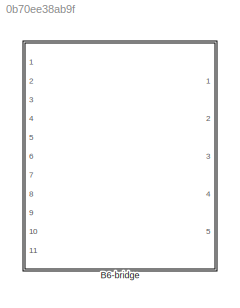
MODEL slx_0b70ee38ab9f
KIND library
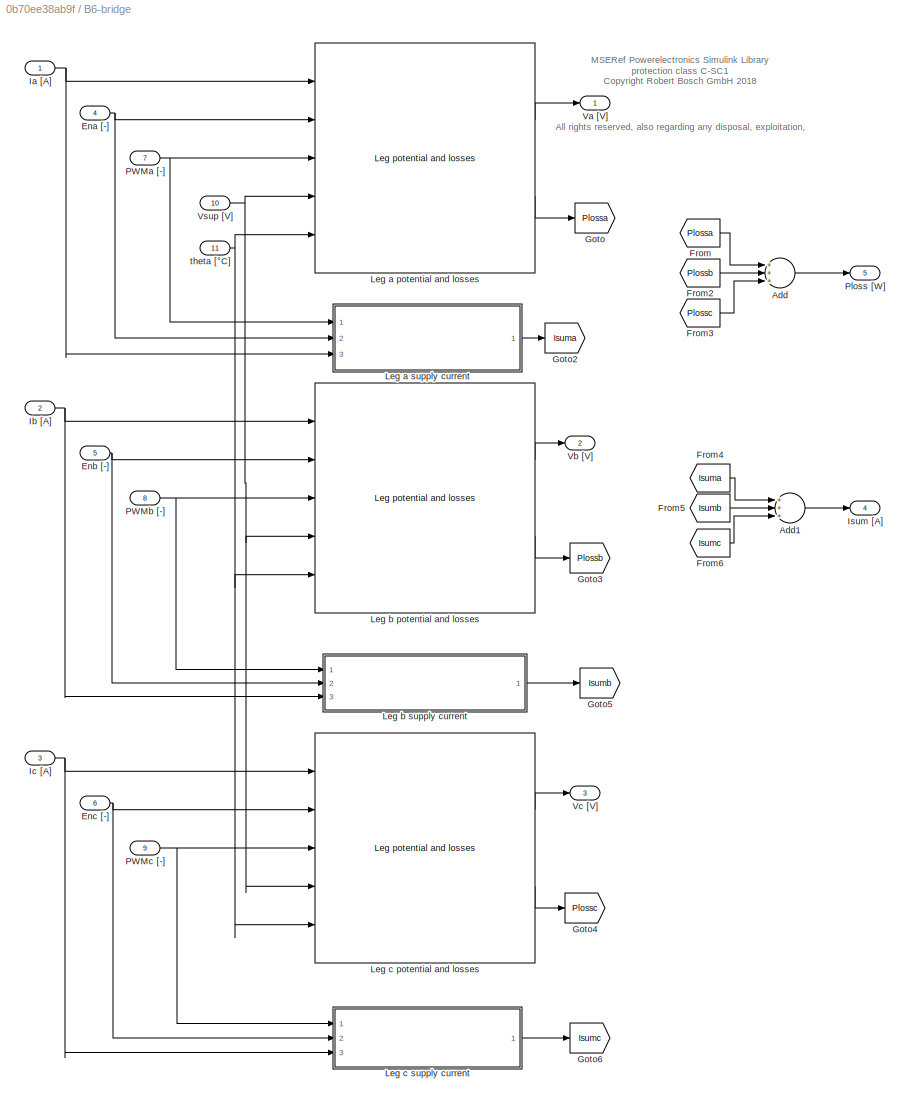
BLOCK [SubSystem] B6-bridge
  AttributesFormatString = <%<Tag>>
  Ports = [11, 5]
  RequestExecContextInheritance = off
  Tag = PEB601MSEREF
BLOCK [Sum] B6-bridge/Add
  InputSameDT = off
  Inputs = +++
  OutDataTypeStr = Inherit: Inherit via internal rule
  Ports = [3, 1]
  SaturateOnIntegerOverflow = off
BLOCK [Sum] B6-bridge/Add1
  InputSameDT = off
  Inputs = +++
  OutDataTypeStr = Inherit: Inherit via internal rule
  Ports = [3, 1]
  SaturateOnIntegerOverflow = off
BLOCK [Inport] B6-bridge/Ena [-]
  IconDisplay = Port number
  Port = 4
BLOCK [Inport] B6-bridge/Enb [-]
  IconDisplay = Port number
  Port = 5
BLOCK [Inport] B6-bridge/Enc [-]
  IconDisplay = Port number
  Port = 6
BLOCK [From] B6-bridge/From
  CloseFcn = tagdialog Close
  GotoTag = Plossa
BLOCK [From] B6-bridge/From2
  CloseFcn = tagdialog Close
  GotoTag = Plossb
BLOCK [From] B6-bridge/From3
  CloseFcn = tagdialog Close
  GotoTag = Plossc
BLOCK [From] B6-bridge/From4
  CloseFcn = tagdialog Close
  GotoTag = Isuma
BLOCK [From] B6-bridge/From5
  CloseFcn = tagdialog Close
  GotoTag = Isumb
BLOCK [From] B6-bridge/From6
  CloseFcn = tagdialog Close
  GotoTag = Isumc
BLOCK [Goto] B6-bridge/Goto
  GotoTag = Plossa
BLOCK [Goto] B6-bridge/Goto2
  GotoTag = Isuma
BLOCK [Goto] B6-bridge/Goto3
  GotoTag = Plossb
BLOCK [Goto] B6-bridge/Goto4
  GotoTag = Plossc
BLOCK [Goto] B6-bridge/Goto5
  GotoTag = Isumb
BLOCK [Goto] B6-bridge/Goto6
  GotoTag = Isumc
BLOCK [Inport] B6-bridge/Ia [A]
  IconDisplay = Port number
BLOCK [Inport] B6-bridge/Ib [A]
  IconDisplay = Port number
  Port = 2
BLOCK [Inport] B6-bridge/Ic [A]
  IconDisplay = Port number
  Port = 3
BLOCK [Outport] B6-bridge/Isum [A]
  IconDisplay = Port number
  Port = 4
BLOCK [Reference] B6-bridge/Leg a potential and losses  REF=PEPS101MSEREF/Single power stage/Leg potential and losses
  IGBT = IGBT
  Ieps = Ieps
  Ports = [5, 2]
  RD20 = RD20
  RT20 = RT20
  SourceBlock = PEPS101MSEREF/Single power stage/Leg potential and losses
  SourceType = PEPS101MSEREF_potential
  VD20 = VD20
  VT20 = VT20
  alphaRD = alphaRD
  alphaRT = alphaRT
  alphaVD = alphaVD
  alphaVT = alphaVT
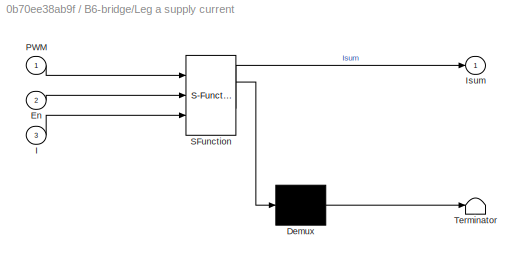
BLOCK [SubSystem] B6-bridge/Leg a supply current
  ErrorFcn = Stateflow.Translate.translate
  PermitHierarchicalResolution = ExplicitOnly
  Ports = [3, 1]
  RequestExecContextInheritance = off
  SFBlockType = MATLAB Function
  TreatAsAtomicUnit = on
BLOCK [Demux] B6-bridge/Leg a supply current/ Demux 
  Outputs = 1
  Ports = [1, 1]
BLOCK [S-Function] B6-bridge/Leg a supply current/ SFunction 
  EnableBusSupport = off
  FunctionName = sf_sfun
  PortCounts = [3 2]
  Ports = [3, 2]
  Tag = Stateflow S-Function PEB601MSEREF 1
BLOCK [Terminator] B6-bridge/Leg a supply current/ Terminator 
BLOCK [Inport] B6-bridge/Leg a supply current/En
  IconDisplay = Port number
  Port = 2
BLOCK [Inport] B6-bridge/Leg a supply current/I
  IconDisplay = Port number
  Port = 3
BLOCK [Outport] B6-bridge/Leg a supply current/Isum
  IconDisplay = Port number
BLOCK [Inport] B6-bridge/Leg a supply current/PWM
  IconDisplay = Port number
BLOCK [Reference] B6-bridge/Leg b potential and losses  REF=PEPS101MSEREF/Single power stage/Leg potential and losses
  IGBT = IGBT
  Ieps = Ieps
  Ports = [5, 2]
  RD20 = RD20
  RT20 = RT20
  SourceBlock = PEPS101MSEREF/Single power stage/Leg potential and losses
  SourceType = PEPS101MSEREF_potential
  VD20 = VD20
  VT20 = VT20
  alphaRD = alphaRD
  alphaRT = alphaRT
  alphaVD = alphaVD
  alphaVT = alphaVT
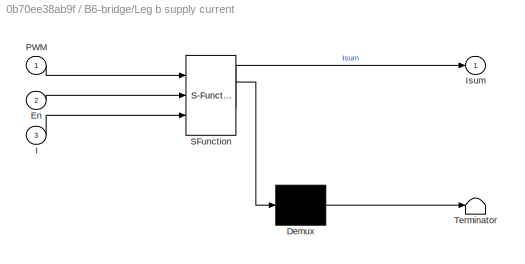
BLOCK [SubSystem] B6-bridge/Leg b supply current
  ErrorFcn = Stateflow.Translate.translate
  PermitHierarchicalResolution = ExplicitOnly
  Ports = [3, 1]
  RequestExecContextInheritance = off
  SFBlockType = MATLAB Function
  TreatAsAtomicUnit = on
BLOCK [Demux] B6-bridge/Leg b supply current/ Demux 
  Outputs = 1
  Ports = [1, 1]
BLOCK [S-Function] B6-bridge/Leg b supply current/ SFunction 
  EnableBusSupport = off
  FunctionName = sf_sfun
  PortCounts = [3 2]
  Ports = [3, 2]
  Tag = Stateflow S-Function PEB601MSEREF 3
BLOCK [Terminator] B6-bridge/Leg b supply current/ Terminator 
BLOCK [Inport] B6-bridge/Leg b supply current/En
  IconDisplay = Port number
  Port = 2
BLOCK [Inport] B6-bridge/Leg b supply current/I
  IconDisplay = Port number
  Port = 3
BLOCK [Outport] B6-bridge/Leg b supply current/Isum
  IconDisplay = Port number
BLOCK [Inport] B6-bridge/Leg b supply current/PWM
  IconDisplay = Port number
BLOCK [Reference] B6-bridge/Leg c potential and losses  REF=PEPS101MSEREF/Single power stage/Leg potential and losses
  IGBT = IGBT
  Ieps = Ieps
  Ports = [5, 2]
  RD20 = RD20
  RT20 = RT20
  SourceBlock = PEPS101MSEREF/Single power stage/Leg potential and losses
  SourceType = PEPS101MSEREF_potential
  VD20 = VD20
  VT20 = VT20
  alphaRD = alphaRD
  alphaRT = alphaRT
  alphaVD = alphaVD
  alphaVT = alphaVT
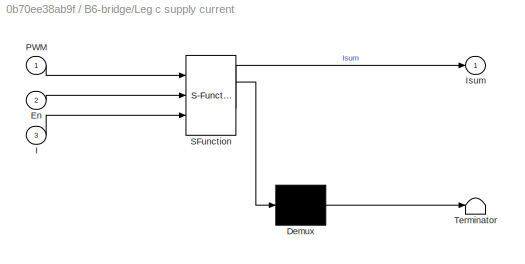
BLOCK [SubSystem] B6-bridge/Leg c supply current
  ErrorFcn = Stateflow.Translate.translate
  PermitHierarchicalResolution = ExplicitOnly
  Ports = [3, 1]
  RequestExecContextInheritance = off
  SFBlockType = MATLAB Function
  TreatAsAtomicUnit = on
BLOCK [Demux] B6-bridge/Leg c supply current/ Demux 
  Outputs = 1
  Ports = [1, 1]
BLOCK [S-Function] B6-bridge/Leg c supply current/ SFunction 
  EnableBusSupport = off
  FunctionName = sf_sfun
  PortCounts = [3 2]
  Ports = [3, 2]
  Tag = Stateflow S-Function PEB601MSEREF 4
BLOCK [Terminator] B6-bridge/Leg c supply current/ Terminator 
BLOCK [Inport] B6-bridge/Leg c supply current/En
  IconDisplay = Port number
  Port = 2
BLOCK [Inport] B6-bridge/Leg c supply current/I
  IconDisplay = Port number
  Port = 3
BLOCK [Outport] B6-bridge/Leg c supply current/Isum
  IconDisplay = Port number
BLOCK [Inport] B6-bridge/Leg c supply current/PWM
  IconDisplay = Port number
BLOCK [Inport] B6-bridge/PWMa [-]
  IconDisplay = Port number
  Port = 7
BLOCK [Inport] B6-bridge/PWMb [-]
  IconDisplay = Port number
  Port = 8
BLOCK [Inport] B6-bridge/PWMc [-]
  IconDisplay = Port number
  Port = 9
BLOCK [Outport] B6-bridge/Ploss [W]
  IconDisplay = Port number
  Port = 5
BLOCK [Outport] B6-bridge/Va [V]
  IconDisplay = Port number
BLOCK [Outport] B6-bridge/Vb [V]
  IconDisplay = Port number
  Port = 2
BLOCK [Outport] B6-bridge/Vc [V]
  IconDisplay = Port number
  Port = 3
BLOCK [Inport] B6-bridge/Vsup [V]
  IconDisplay = Port number
  Port = 10
BLOCK [Inport] B6-bridge/theta [°C]
  IconDisplay = Port number
  Port = 11
ANNOTATION B6-bridge: MSERef Powerelectronics Simulink Library protection class C-SC1 <copyright redacted>
LINE B6-bridge/Add1:1 -> B6-bridge/Isum [A]:1
LINE B6-bridge/Add:1 -> B6-bridge/Ploss [W]:1
NET B6-bridge/Ena [-]:1 -> B6-bridge/Leg a potential and losses:2, B6-bridge/Leg a supply current:2
NET B6-bridge/Enb [-]:1 -> B6-bridge/Leg b potential and losses:2, B6-bridge/Leg b supply current:2
NET B6-bridge/Enc [-]:1 -> B6-bridge/Leg c potential and losses:2, B6-bridge/Leg c supply current:2
LINE B6-bridge/From2:1 -> B6-bridge/Add:2
LINE B6-bridge/From3:1 -> B6-bridge/Add:3
LINE B6-bridge/From4:1 -> B6-bridge/Add1:1
LINE B6-bridge/From5:1 -> B6-bridge/Add1:2
LINE B6-bridge/From6:1 -> B6-bridge/Add1:3
LINE B6-bridge/From:1 -> B6-bridge/Add:1
NET B6-bridge/Ia [A]:1 -> B6-bridge/Leg a potential and losses:1, B6-bridge/Leg a supply current:3
NET B6-bridge/Ib [A]:1 -> B6-bridge/Leg b potential and losses:1, B6-bridge/Leg b supply current:3
NET B6-bridge/Ic [A]:1 -> B6-bridge/Leg c potential and losses:1, B6-bridge/Leg c supply current:3
LINE B6-bridge/Leg a potential and losses:1 -> B6-bridge/Va [V]:1
LINE B6-bridge/Leg a potential and losses:2 -> B6-bridge/Goto:1
LINE B6-bridge/Leg a supply current:1 -> B6-bridge/Goto2:1
LINE B6-bridge/Leg b potential and losses:1 -> B6-bridge/Vb [V]:1
LINE B6-bridge/Leg b potential and losses:2 -> B6-bridge/Goto3:1
LINE B6-bridge/Leg b supply current:1 -> B6-bridge/Goto5:1
LINE B6-bridge/Leg c potential and losses:1 -> B6-bridge/Vc [V]:1
LINE B6-bridge/Leg c potential and losses:2 -> B6-bridge/Goto4:1
LINE B6-bridge/Leg c supply current:1 -> B6-bridge/Goto6:1
NET B6-bridge/PWMa [-]:1 -> B6-bridge/Leg a potential and losses:3, B6-bridge/Leg a supply current:1
NET B6-bridge/PWMb [-]:1 -> B6-bridge/Leg b potential and losses:3, B6-bridge/Leg b supply current:1
NET B6-bridge/PWMc [-]:1 -> B6-bridge/Leg c potential and losses:3, B6-bridge/Leg c supply current:1
NET B6-bridge/Vsup [V]:1 -> B6-bridge/Leg a potential and losses:4, B6-bridge/Leg b potential and losses:4, B6-bridge/Leg c potential and losses:4
NET B6-bridge/theta [°C]:1 -> B6-bridge/Leg a potential and losses:5, B6-bridge/Leg b potential and losses:5, B6-bridge/Leg c potential and losses:5
note: NET lines group one-source signal fan-out (src -> all destinations, sorted); 1:1 wires keep LINE
CHART B6-bridge/Leg a supply current states=1 transitions=1
  STATE_LABEL 'eML_blk_kernel()'
  STATE_LABEL 'SCRIPT:\nfunction Isum = PEPS101MSEREF_supply_current(PWM,En,I)\n% This function is used to compute the supply current.\n%\n%  MSERef Powerelectronics Simulink Library \n%  protection class C-SC1\n%\n%  <copyright redacted>\n%\n%  All rights reserved, also regarding any disposal, exploitation,\n%  reproduction, editing, distribution, as well as in the event of\n%  applications for industrial prop...<+249ch>'  <repeated x3 — deduplicated; at blocks: Leg a supply current, Leg b supply current, Leg c supply current>
CHART B6-bridge/Leg b supply current states=1 transitions=1
  STATE_LABEL 'eML_blk_kernel()'
CHART B6-bridge/Leg c supply current states=1 transitions=1
  STATE_LABEL 'eML_blk_kernel()'
